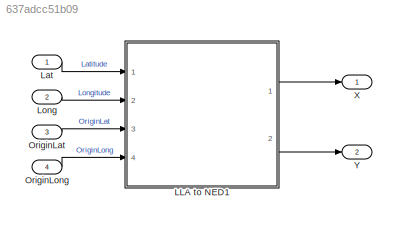
MODEL slx_637adcc51b09
KIND model
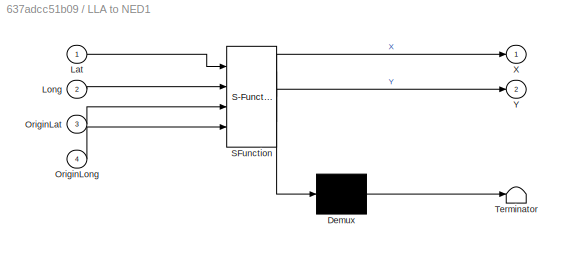
BLOCK [SubSystem] LLA to NED1
  ErrorFcn = Stateflow.Translate.translate
  PermitHierarchicalResolution = ExplicitOnly
  Ports = [4, 2]
  RequestExecContextInheritance = off
  SFBlockType = MATLAB Function
  TreatAsAtomicUnit = on
BLOCK [Demux] LLA to NED1/ Demux 
  Outputs = 1
  Ports = [1, 1]
BLOCK [S-Function] LLA to NED1/ SFunction 
  EnableBusSupport = on
  FunctionName = sf_sfun
  PortCounts = [4 3]
  Ports = [4, 3]
  Tag = Stateflow S-Function LLA2NEDv3 1
BLOCK [Terminator] LLA to NED1/ Terminator 
BLOCK [Inport] LLA to NED1/Lat
  IconDisplay = Port number
BLOCK [Inport] LLA to NED1/Long
  IconDisplay = Port number
  Port = 2
BLOCK [Inport] LLA to NED1/OriginLat
  IconDisplay = Port number
  Port = 3
BLOCK [Inport] LLA to NED1/OriginLong
  IconDisplay = Port number
  Port = 4
BLOCK [Outport] LLA to NED1/X
  IconDisplay = Port number
BLOCK [Outport] LLA to NED1/Y
  IconDisplay = Port number
  Port = 2
BLOCK [Inport] Lat
  IconDisplay = Port number
BLOCK [Inport] Long
  IconDisplay = Port number
  Port = 2
BLOCK [Inport] OriginLat
  IconDisplay = Port number
  Port = 3
BLOCK [Inport] OriginLong
  IconDisplay = Port number
  Port = 4
BLOCK [Outport] X
  IconDisplay = Port number
BLOCK [Outport] Y
  IconDisplay = Port number
  Port = 2
LINE LLA to NED1:1 -> X:1
LINE LLA to NED1:2 -> Y:1
LINE Lat:1 -> LLA to NED1:1
LINE Long:1 -> LLA to NED1:2
LINE OriginLat:1 -> LLA to NED1:3
LINE OriginLong:1 -> LLA to NED1:4
